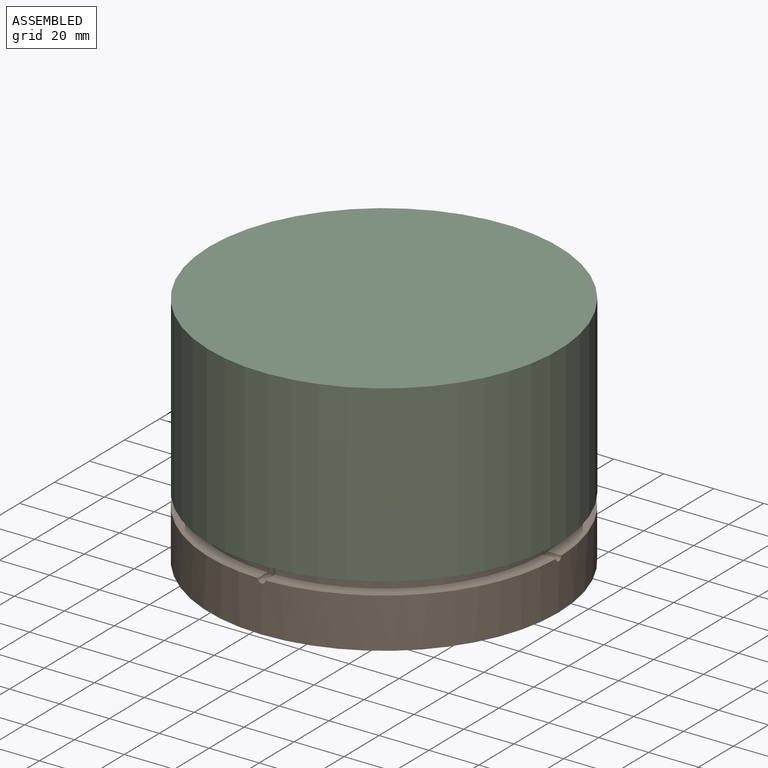
[diagram: assembled view]
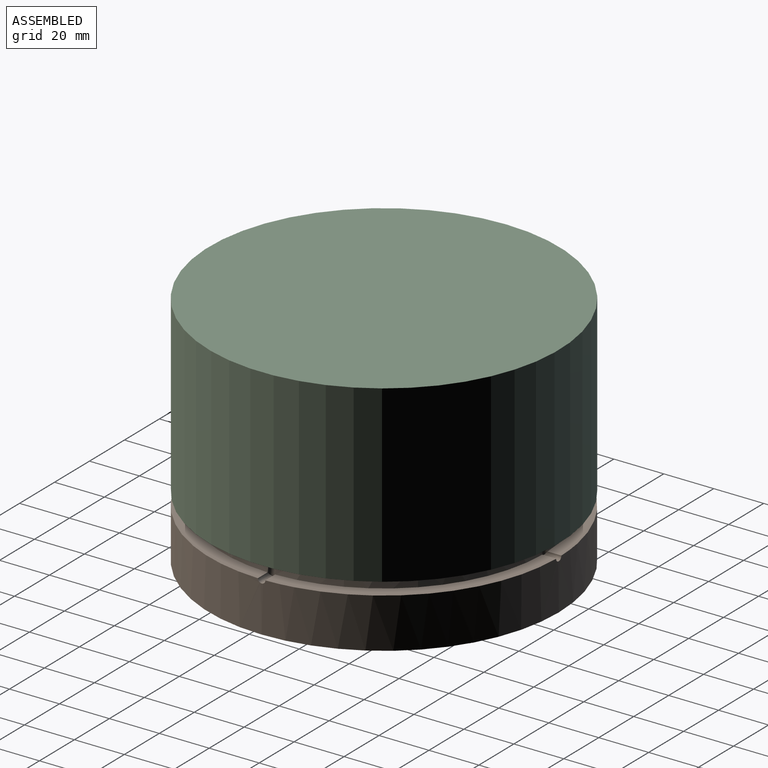
[diagram: assembled view, second angle]
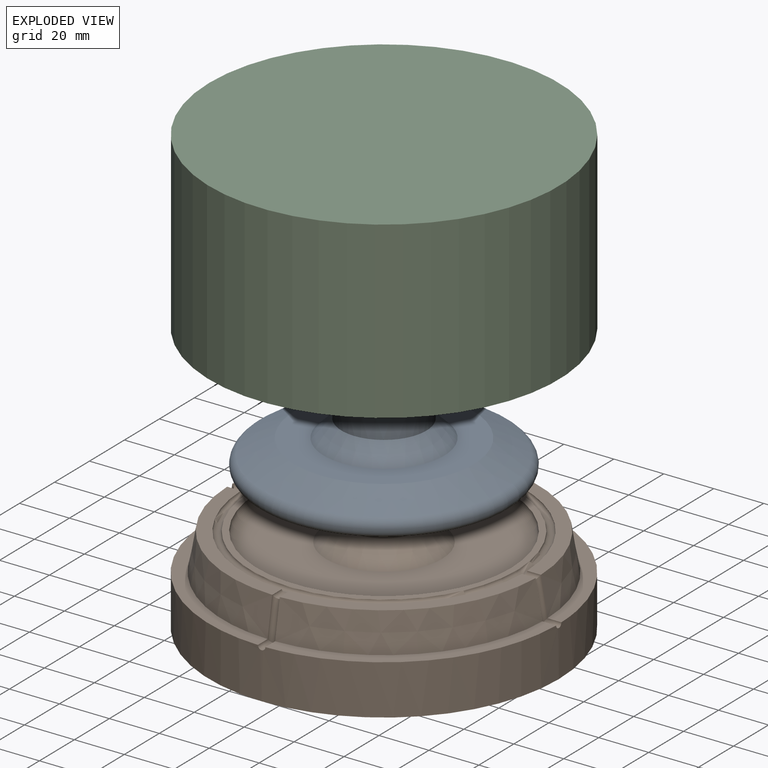
[diagram: exploded view]
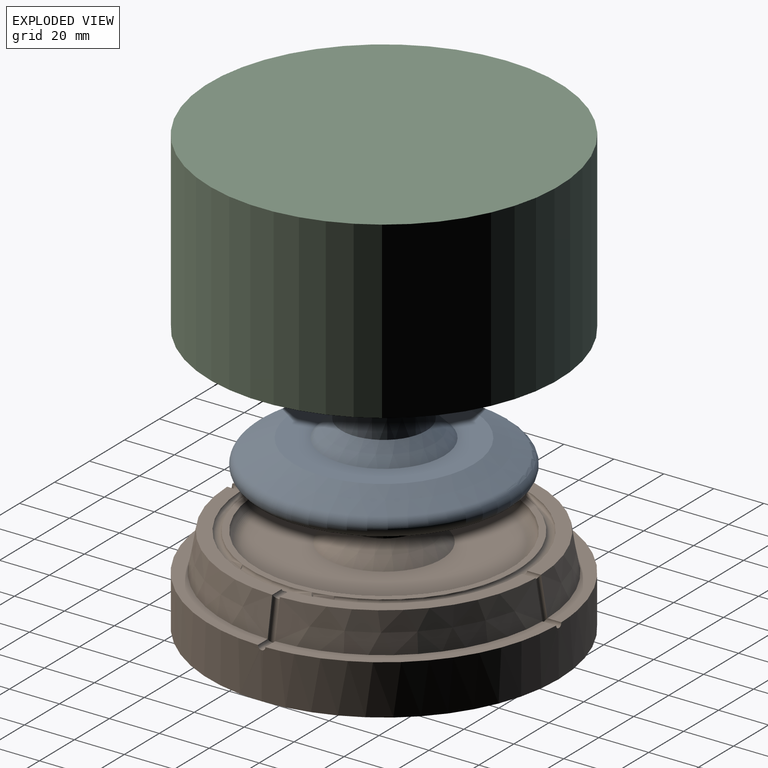
[diagram: exploded view, second angle]
ASSEMBLY  parts=3 mates=2
PART A: 11 faces, bbox 110x110x45 mm
  f0: plane 93.6x93.6mm, normal (0,0,-1), area 5185.4mm2, adj f1,f9
  f1: cone r=15mm half-angle=45deg, axis (0,0,-1), area 1398.1mm2, adj f0,f2
  f2: cylinder r=15mm len=30mm, axis (0,0,-1), area 732.2mm2, adj f1,f3
  f3: plane 30x30mm, normal (0,0,-1), area 706.9mm2, adj f2
  f4: plane 28.16x28.16mm, normal (0,0,1), area 622.8mm2, adj f10
  f5: cone r=16mm half-angle=2.4deg, axis (0,0,-1), area 2333.4mm2, adj f6,f10
  f6: cone r=17mm half-angle=45deg, axis (0,0,-1), area 1306.6mm2, adj f5,f7
  f7: plane 71.78x71.78mm, normal (0,0,1), area 2215.3mm2, adj f6,f8
  f8: cone r=35.89mm half-angle=65deg, axis (0,0,-1), area 3685.1mm2, adj f7,f9
  f9: torus R=46.8mm, axis (0,0,-1), area 3373.6mm2, adj f0,f8
  f10: torus R=14.08mm, axis (0,0,-1), area 294.8mm2, adj f4,f5
PART B: 33 faces, bbox 140x140x47 mm
  f0: cone r=64.44mm half-angle=10deg, axis (0,0,-1), area 1464.5mm2, adj f6,f10,f21,f22,f30,f31
  f1: cone r=64.44mm half-angle=10deg, axis (0,0,-1), area 1464.5mm2, adj f3,f7,f27,f28,f30,f31
  f2: cone r=64.44mm half-angle=10deg, axis (0,0,-1), area 1464.5mm2, adj f4,f8,f24,f25,f27,f28
  f3: plane 68.5x68.5mm, normal (0,0,1), area 570mm2, adj f1,f11,f28,f29,f31,f32
  f4: plane 68.5x68.5mm, normal (0,0,1), area 569.9mm2, adj f2,f11,f25,f26,f28,f29
  f5: plane 68.5x68.5mm, normal (0,0,1), area 569.9mm2, adj f9,f11,f22,f23,f25,f26
  f6: plane 60.28x60.28mm, normal (0,0,1), area 493.7mm2, adj f0,f19,f21,f30
  f7: plane 60.28x60.28mm, normal (0,0,1), area 493.7mm2, adj f1,f19,f27,f30
  f8: plane 60.28x60.28mm, normal (0,0,1), area 493.7mm2, adj f2,f19,f24,f27
  f9: cone r=64.44mm half-angle=10deg, axis (0,0,-1), area 1464.5mm2, adj f5,f20,f21,f22,f24,f25
  f10: plane 68.5x68.5mm, normal (0,0,1), area 570mm2, adj f0,f11,f22,f23,f31,f32
  f11: cylinder r=70mm len=140mm, axis (0,0,-1), area 8783.7mm2, adj f3,f4,f5,f10,f12,f23,f26,f29
  f12: plane 140x140mm, normal (0,0,-1), area 15393.8mm2, adj f11
  f13: plane 30x30mm, normal (0,0,1), area 706.9mm2, adj f14
  f14: cylinder r=15mm len=30mm, axis (0,0,-1), area 732.2mm2, adj f13,f15
  f15: cone r=15mm half-angle=45deg, axis (0,0,-1), area 1398.1mm2, adj f14,f16
  f16: plane 93.6x93.6mm, normal (0,0,1), area 5185.4mm2, adj f15,f17
  f17: torus R=46.8mm, axis (0,0,-1), area 1948.1mm2, adj f16,f18
  f18: plane 106.6x106.6mm, normal (0,0,1), area 817.6mm2, adj f17,f19
  f19: torus R=54.8mm, axis (0,0,-1), area 1608.5mm2, adj f6,f7,f8,f18,f20,f21,f24,f27
  f20: plane 60.28x60.28mm, normal (0,0,1), area 493.7mm2, adj f9,f19,f21,f24
  f21: cylinder r=1.5mm len=6.99mm, axis (0,-1,0), area 24.8mm2, adj f0,f6,f9,f19,f20,f22
  f22: cylinder r=1.5mm len=16.49mm, axis (0,-0.17,0.98), area 71.2mm2, adj f0,f5,f9,f10,f21,f23
  f23: cylinder r=1.5mm len=6.8mm, axis (0,-1,0), area 29.9mm2, adj f5,f10,f11,f22
  f24: cylinder r=1.5mm len=6.99mm, axis (-1,0,0), area 24.8mm2, adj f2,f8,f9,f19,f20,f25
  f25: cylinder r=1.5mm len=16.49mm, axis (-0.17,0,0.98), area 71.2mm2, adj f2,f4,f5,f9,f24,f26
  f26: cylinder r=1.5mm len=6.8mm, axis (-1,0,0), area 29.9mm2, adj f4,f5,f11,f25
  f27: cylinder r=1.5mm len=6.99mm, axis (0,1,0), area 24.8mm2, adj f1,f2,f7,f8,f19,f28
  f28: cylinder r=1.5mm len=16.49mm, axis (0,0.17,0.98), area 71.2mm2, adj f1,f2,f3,f4,f27,f29
  f29: cylinder r=1.5mm len=6.8mm, axis (0,1,0), area 29.9mm2, adj f3,f4,f11,f28
  f30: cylinder r=1.5mm len=6.99mm, axis (1,0,0), area 24.8mm2, adj f0,f1,f6,f7,f19,f31
  f31: cylinder r=1.5mm len=16.49mm, axis (0.17,0,0.98), area 71.2mm2, adj f0,f1,f3,f10,f30,f32
  f32: cylinder r=1.5mm len=6.82mm, axis (1,0,0), area 29.9mm2, adj f3,f10,f11,f31
PART C: 12 faces, bbox 140x140x70 mm
  f0: plane 140x140mm, normal (0,0,1), area 15393.8mm2, adj f1
  f1: cylinder r=70mm len=140mm, axis (0,0,-1), area 30787.6mm2, adj f0,f2
  f2: plane 140x140mm, normal (0,0,-1), area 2700.9mm2, adj f1,f3
  f3: cone r=63.56mm half-angle=10deg, axis (0,0,-1), area 3999.2mm2, adj f2,f4
  f4: plane 123.6x123.6mm, normal (0,0,-1), area 3891.2mm2, adj f3,f5
  f5: torus R=46.8mm, axis (0,0,-1), area 1425.5mm2, adj f4,f6
  f6: cone r=35.89mm half-angle=65deg, axis (0,0,-1), area 3685.1mm2, adj f5,f7
  f7: plane 71.78x71.78mm, normal (0,0,-1), area 2215.3mm2, adj f6,f8
  f8: cone r=17mm half-angle=45deg, axis (0,0,-1), area 1306.6mm2, adj f7,f9
  f9: cone r=16mm half-angle=2.4deg, axis (0,0,-1), area 2333.4mm2, adj f8,f11
  f10: plane 28.16x28.16mm, normal (0,0,-1), area 622.8mm2, adj f11
  f11: torus R=14.08mm, axis (0,0,-1), area 294.8mm2, adj f9,f10
PLACE A rot(axis=(0,0,-1),90deg) t=(0,0,0)mm
PLACE B at identity fixed
PLACE C at identity
MATE fastened A.f1 <-> B.f0  axis (0,0,-1) through (0,0,8.3)mm
MATE fastened C.f8 <-> A.f1  axis (0,0,-1) through (0,0,37.3)mm
